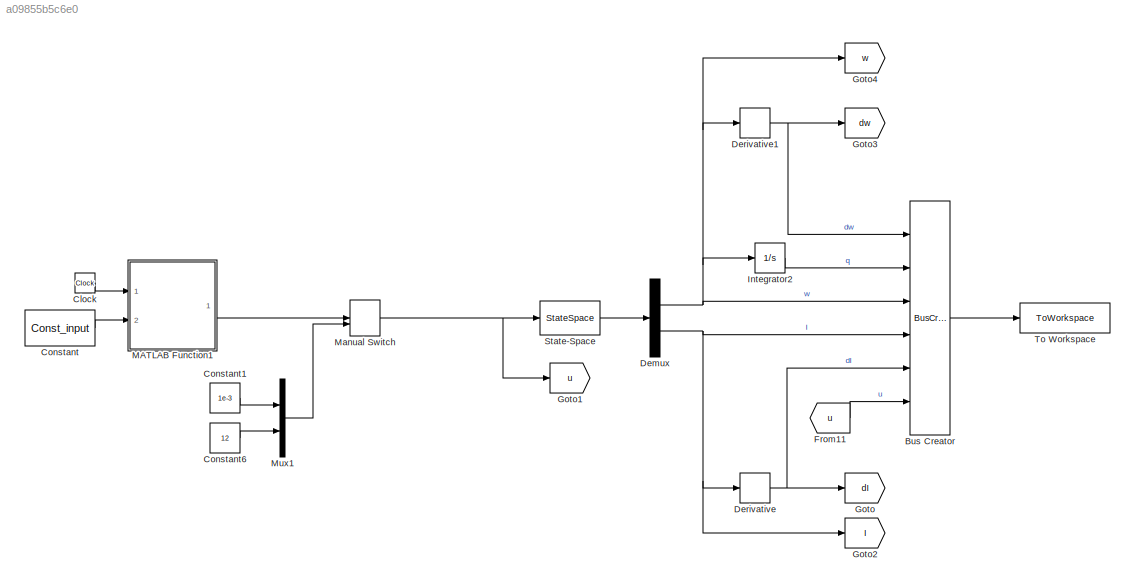
MODEL slx_a09855b5c6e0
KIND model
CONFIG AbsTol = auto
CONFIG EnableMultiTasking = off
CONFIG FixedStep = 0.001
CONFIG MaxStep = auto
CONFIG MinStep = auto
CONFIG RelTol = 1e-3
CONFIG SampleTimeConstraint = Unconstrained
CONFIG SolverName = ode23t
CONFIG StartTime = 0.0
CONFIG StopTime = 7
BLOCK [BusCreator] Bus Creator
  DisplayOption = bar
  InheritFromInputs = on
  Inputs = 6
  Ports = [6, 1]
BLOCK [Clock] Clock
BLOCK [Constant] Constant
  Value = Const_input
BLOCK [Constant] Constant1
  Value = 1e-3
BLOCK [Constant] Constant6
  Value = 12
BLOCK [Demux] Demux
  Outputs = 2
  Ports = [1, 2]
BLOCK [Derivative] Derivative
BLOCK [Derivative] Derivative1
BLOCK [From] From11
  GotoTag = u
BLOCK [Goto] Goto
  GotoTag = dI
BLOCK [Goto] Goto1
  GotoTag = u
BLOCK [Goto] Goto2
  GotoTag = I
BLOCK [Goto] Goto3
  GotoTag = dw
BLOCK [Goto] Goto4
  GotoTag = w
BLOCK [Integrator] Integrator2
  Ports = [1, 1]
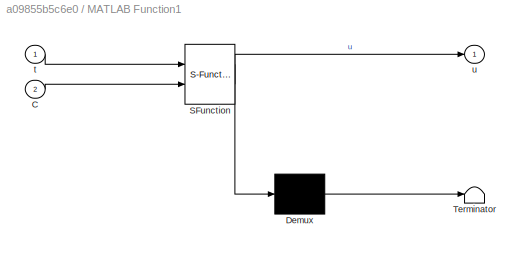
BLOCK [SubSystem] MATLAB Function1
  ErrorFcn = Stateflow.Translate.translate
  PermitHierarchicalResolution = ExplicitOnly
  Ports = [2, 1]
  RequestExecContextInheritance = off
  SFBlockType = MATLAB Function
  TreatAsAtomicUnit = on
BLOCK [Demux] MATLAB Function1/ Demux 
  Outputs = 1
  Ports = [1, 1]
BLOCK [S-Function] MATLAB Function1/ SFunction 
  EnableBusSupport = on
  FunctionName = sf_sfun
  PortCounts = [2 2]
  Ports = [2, 2]
  SFcnIsStateOwnerBlock = off
  SFunctionDeploymentMode = off
  Tag = Stateflow S-Function 2
BLOCK [Terminator] MATLAB Function1/ Terminator 
BLOCK [Inport] MATLAB Function1/C
  Port = 2
BLOCK [Inport] MATLAB Function1/t
BLOCK [Outport] MATLAB Function1/u
BLOCK [ManualSwitch] Manual Switch
  CurrentSetting = 0
BLOCK [Mux] Mux1
  DisplayOption = bar
  Inputs = 2
  Ports = [2, 1]
BLOCK [StateSpace] State-Space
  A = A
  B = B
  C = C
  D = D
  InitialCondition = [0;0]
  Ports = [1, 1]
BLOCK [ToWorkspace] To Workspace
  FixptAsFi = on
  MaxDataPoints = inf
  Ports = [1]
  SampleTime = -1
  SaveFormat = Timeseries
  VariableName = simout
LINE Bus Creator:1 -> To Workspace:1
LINE Clock:1 -> MATLAB Function1:1
LINE Constant1:1 -> Mux1:1
LINE Constant6:1 -> Mux1:2
LINE Constant:1 -> MATLAB Function1:2
NET Demux:1 -> Bus Creator:3, Derivative1:1, Goto4:1, Integrator2:1
NET Demux:2 -> Bus Creator:4, Derivative:1, Goto2:1
NET Derivative1:1 -> Bus Creator:1, Goto3:1
NET Derivative:1 -> Bus Creator:5, Goto:1
LINE From11:1 -> Bus Creator:6
LINE Integrator2:1 -> Bus Creator:2
LINE MATLAB Function1:1 -> Manual Switch:1
NET Manual Switch:1 -> Goto1:1, State-Space:1
LINE Mux1:1 -> Manual Switch:2
LINE State-Space:1 -> Demux:1
note: NET lines group one-source signal fan-out (src -> all destinations, sorted); 1:1 wires keep LINE
CHART MATLAB Function1 states=1 transitions=1
  STATE_LABEL 'eML_blk_kernel()'
  STATE_LABEL "SCRIPT:\nfunction u = fcn(t, C)\n\n% w = 4;\n% A = 6;\n% B = 6;\n% fi = 3.1415;\n% u = A * cos(w * t + fi) + B;\n\nw = C(3);\nA = C(1);\nB = C(2);\nfi = C(4);\nu = [C(5) A * cos(w * t + fi) + B]';\n"
CHART  states=0 transitions=0
